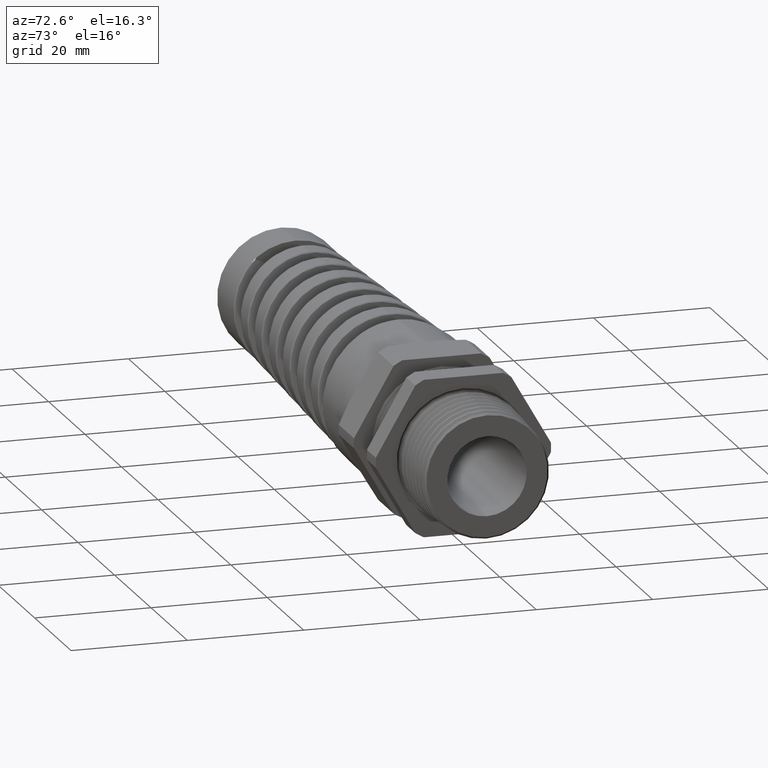
[diagram: clean part render]
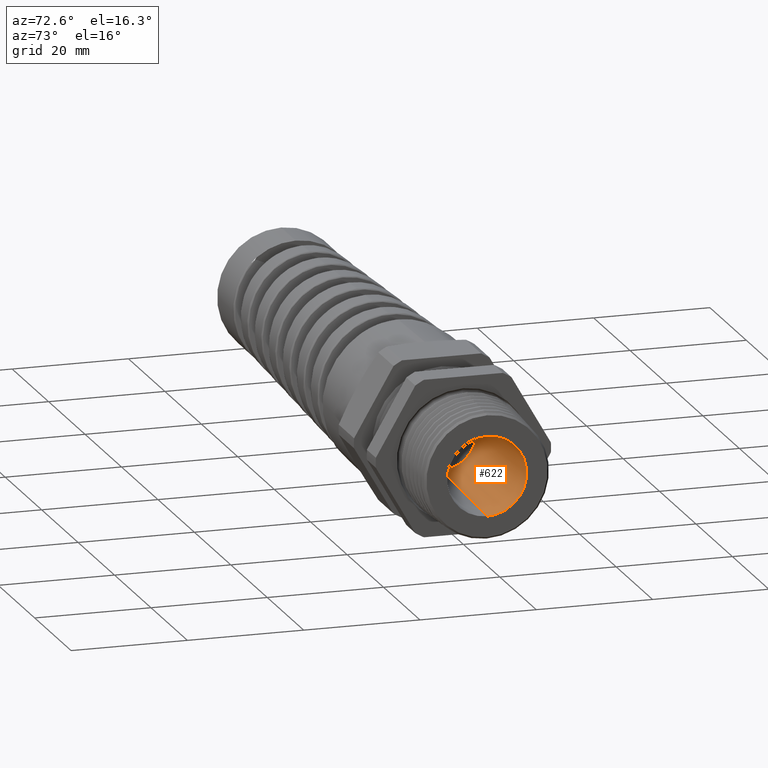
[diagram: same view with one face highlighted and labeled with its STEP entity id]
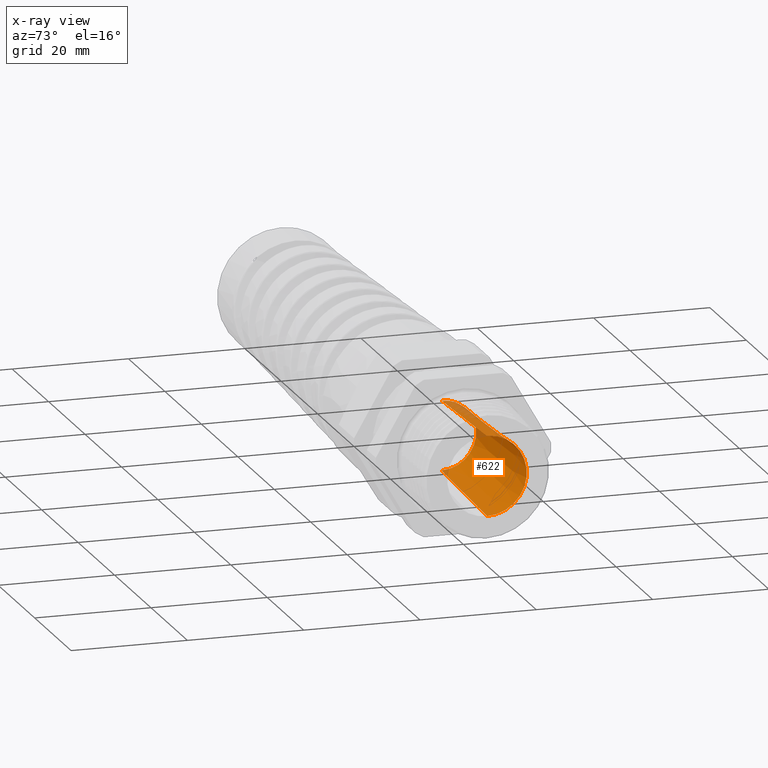
[diagram: x-ray of the same camera — body ghosted, the highlighted face saturated]
A machine part, auxiliary view. The second image highlights one B-rep face of the part: STEP entity #622.
The next image is the same camera in x-ray: the body ghosted, the highlighted face saturated — about 6% of this face is hidden behind the body in this view.
In plain terms, the highlighted conical surface has half-angle 2 deg.
Its self-contained STEP definition (entity closure, byte-faithful):
#599 = ORIENTED_EDGE ( 'NONE', *, *, #1049, .T. ) ;
#600 = ORIENTED_EDGE ( 'NONE', *, *, #601, .F. ) ;
#601 = EDGE_CURVE ( 'NONE', #1044, #1046, #2712, .T. ) ;
#618 = EDGE_CURVE ( 'NONE', #1041, #1040, #2745, .T. ) ;
#622 = ADVANCED_FACE ( 'NONE', ( #2736 ), #2735, .F. ) ;
#623 = EDGE_LOOP ( 'NONE', ( #624, #625, #599, #600 ) ) ;
#624 = ORIENTED_EDGE ( 'NONE', *, *, #1043, .F. ) ;
#625 = ORIENTED_EDGE ( 'NONE', *, *, #618, .T. ) ;
#1040 = VERTEX_POINT ( 'NONE', #10102 ) ;
#1041 = VERTEX_POINT ( 'NONE', #10101 ) ;
#1043 = EDGE_CURVE ( 'NONE', #1041, #1044, #10100, .T. ) ;
#1044 = VERTEX_POINT ( 'NONE', #10144 ) ;
#1046 = VERTEX_POINT ( 'NONE', #10143 ) ;
#1049 = EDGE_CURVE ( 'NONE', #1040, #1046, #10142, .T. ) ;
#2708 = DIRECTION ( 'NONE',  ( 0.0000000000000000000, 0.0000000000000000000, 1.000000000000000000 ) ) ;
#2709 = DIRECTION ( 'NONE',  ( -1.000000000000000000, 0.0000000000000000000, 0.0000000000000000000 ) ) ;
#2710 = CARTESIAN_POINT ( 'NONE',  ( 0.5100000000000000100, 0.0000000000000000000, 0.0000000000000000000 ) ) ;
#2711 = AXIS2_PLACEMENT_3D ( 'NONE', #2710, #2709, #2708 ) ;
#2712 = CIRCLE ( 'NONE', #2711, 0.2692514547431565900 ) ;
#2730 = DIRECTION ( 'NONE',  ( 0.0000000000000000000, 0.0000000000000000000, -1.000000000000000000 ) ) ;
#2731 = DIRECTION ( 'NONE',  ( 1.000000000000000000, 0.0000000000000000000, 0.0000000000000000000 ) ) ;
#2732 = CARTESIAN_POINT ( 'NONE',  ( -0.4708333333333334900, 0.0000000000000000000, 0.0000000000000000000 ) ) ;
#2733 = AXIS2_PLACEMENT_3D ( 'NONE', #2732, #2731, #2730 ) ;
#2735 = CONICAL_SURFACE ( 'NONE', #2733, 0.2349999999999999900, 0.03490658503988732600 ) ;
#2736 = FACE_OUTER_BOUND ( 'NONE', #623, .T. ) ;
#2742 = DIRECTION ( 'NONE',  ( 0.0000000000000000000, 0.0000000000000000000, 1.000000000000000000 ) ) ;
#2743 = DIRECTION ( 'NONE',  ( -1.000000000000000000, 0.0000000000000000000, 0.0000000000000000000 ) ) ;
#2744 = AXIS2_PLACEMENT_3D ( 'NONE', #2750, #2743, #2742 ) ;
#2745 = CIRCLE ( 'NONE', #2744, 0.2349999999999999900 ) ;
#2750 = CARTESIAN_POINT ( 'NONE',  ( -0.4708333333333334900, 0.0000000000000000000, 0.0000000000000000000 ) ) ;
#10097 = DIRECTION ( 'NONE',  ( 0.9993908270190957600, 4.273955692857231900E-018, 0.03489949670250170500 ) ) ;
#10098 = VECTOR ( 'NONE', #10097, 39.37007874015748900 ) ;
#10099 = CARTESIAN_POINT ( 'NONE',  ( -0.4708333333333334900, 2.877919977996279800E-017, 0.2349999999999999900 ) ) ;
#10100 = LINE ( 'NONE', #10099, #10098 ) ;
#10101 = CARTESIAN_POINT ( 'NONE',  ( -0.4708333333333334900, 0.0000000000000000000, 0.2349999999999999900 ) ) ;
#10102 = CARTESIAN_POINT ( 'NONE',  ( -0.4708333333333334900, 2.877919977996279800E-017, -0.2349999999999999900 ) ) ;
#10134 = DIRECTION ( 'NONE',  ( 0.9993908270190957600, 0.0000000000000000000, -0.03489949670250170500 ) ) ;
#10135 = VECTOR ( 'NONE', #10134, 39.37007874015748900 ) ;
#10136 = CARTESIAN_POINT ( 'NONE',  ( -0.4708333333333334900, 0.0000000000000000000, -0.2349999999999999900 ) ) ;
#10142 = LINE ( 'NONE', #10136, #10135 ) ;
#10143 = CARTESIAN_POINT ( 'NONE',  ( 0.5100000000000000100, 0.0000000000000000000, -0.2692514547431565900 ) ) ;
#10144 = CARTESIAN_POINT ( 'NONE',  ( 0.5100000000000000100, 3.297379322169752000E-017, 0.2692514547431565900 ) ) ;